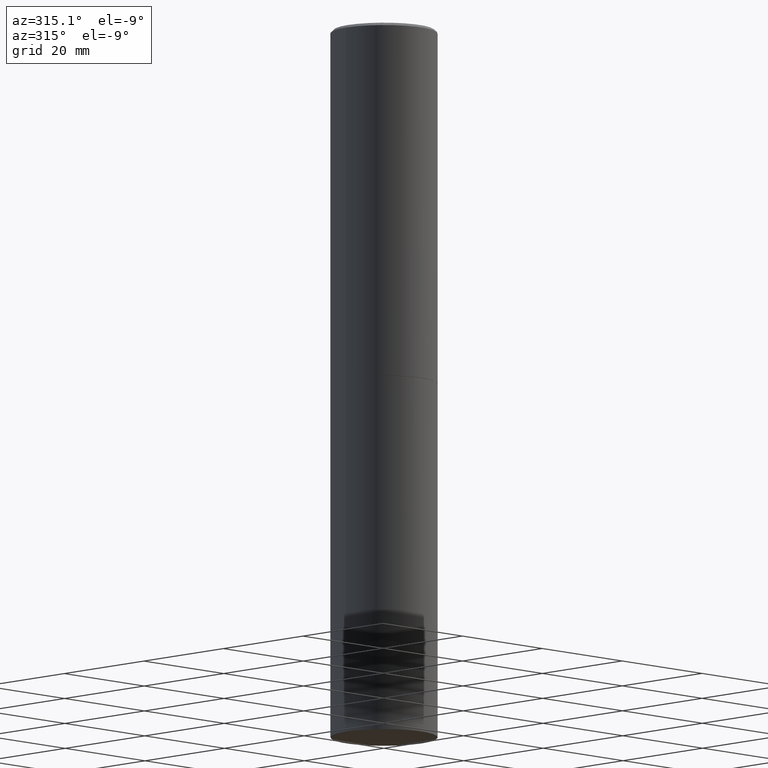
[diagram: clean part render]
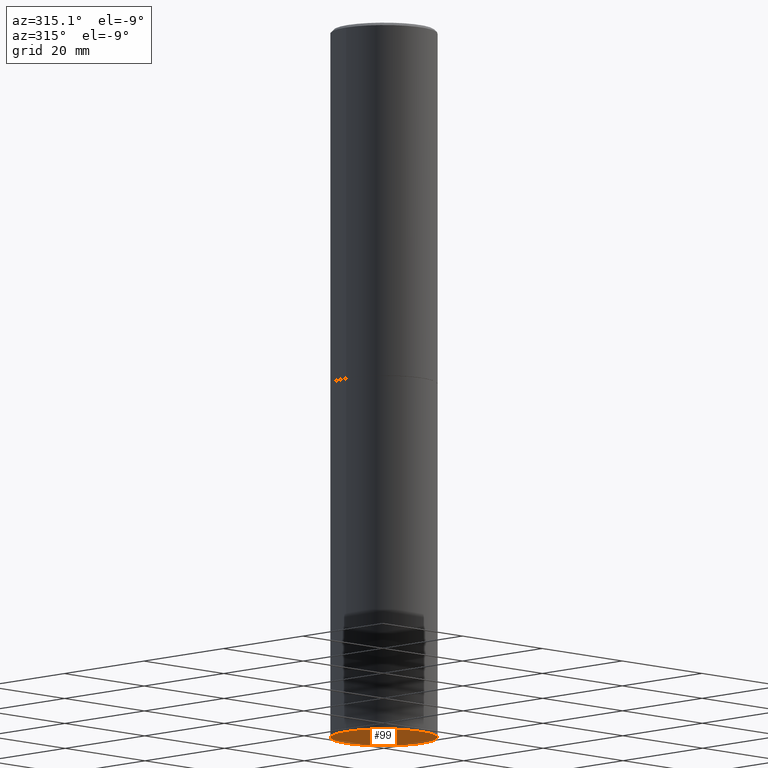
[diagram: same view with one face highlighted and labeled with its STEP entity id]
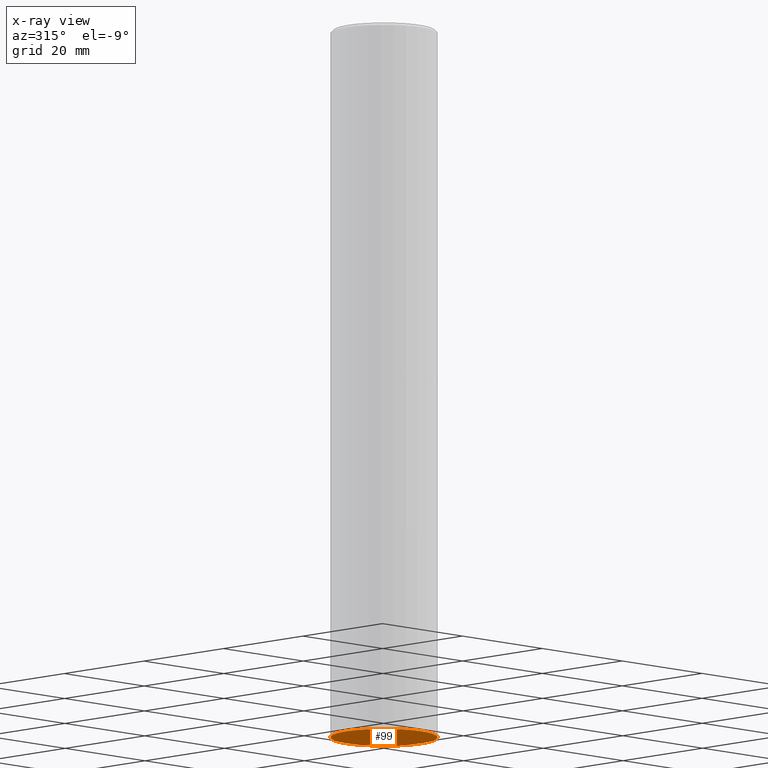
[diagram: x-ray of the same camera — body ghosted, the highlighted face saturated]
A machine part, auxiliary view. The second image highlights one B-rep face of the part: STEP entity #99.
The next image is the same camera in x-ray: the body ghosted, the highlighted face saturated — about 0% of this face is hidden behind the body in this view.
In plain terms, the highlighted planar face has unit normal (0, -0, -1).
Its self-contained STEP definition (entity closure, byte-faithful):
#6 = PLANE ( 'NONE',  #245 ) ;
#29 = FACE_OUTER_BOUND ( 'NONE', #145, .T. ) ;
#34 = DIRECTION ( 'NONE',  ( 1.000000000000000000, -6.982962677686266711E-15, 0.000000000000000000 ) ) ;
#49 = CARTESIAN_POINT ( 'NONE',  ( 1.222734403092568523E-28, -1.745740669421572989E-14, -5.000000000000000000 ) ) ;
#51 = DIRECTION ( 'NONE',  ( 1.000000000000000000, -6.982962677686266711E-15, 0.000000000000000000 ) ) ;
#90 = EDGE_CURVE ( 'NONE', #272, #323, #127, .T. ) ;
#99 = ADVANCED_FACE ( 'NONE', ( #29 ), #6, .T. ) ;
#103 = CIRCLE ( 'NONE', #139, 0.3750000000000000555 ) ;
#110 = CARTESIAN_POINT ( 'NONE',  ( 1.222734403092568523E-28, -1.745740669421572989E-14, -5.000000000000000000 ) ) ;
#127 = CIRCLE ( 'NONE', #332, 0.3750000000000000555 ) ;
#134 = CARTESIAN_POINT ( 'NONE',  ( 2.618611004132472290E-15, 0.3749999999999825695, -5.000000000000000888 ) ) ;
#139 = AXIS2_PLACEMENT_3D ( 'NONE', #49, #296, #51 ) ;
#142 = CARTESIAN_POINT ( 'NONE',  ( 0.3750000000000000555, -2.007601769834807990E-14, -5.000000000000000000 ) ) ;
#145 = EDGE_LOOP ( 'NONE', ( #253, #279 ) ) ;
#155 = DIRECTION ( 'NONE',  ( -2.445468806185136597E-29, 3.491481338843145583E-15, 1.000000000000000000 ) ) ;
#208 = DIRECTION ( 'NONE',  ( 2.438088387897960049E-29, -3.491481338843145188E-15, -1.000000000000000000 ) ) ;
#224 = CARTESIAN_POINT ( 'NONE',  ( -0.3750000000000000555, -1.042851976156142014E-14, -5.000000000000000000 ) ) ;
#245 = AXIS2_PLACEMENT_3D ( 'NONE', #134, #208, #314 ) ;
#253 = ORIENTED_EDGE ( 'NONE', *, *, #90, .F. ) ;
#272 = VERTEX_POINT ( 'NONE', #142 ) ;
#279 = ORIENTED_EDGE ( 'NONE', *, *, #313, .F. ) ;
#296 = DIRECTION ( 'NONE',  ( -2.445468806185136597E-29, 3.491481338843145583E-15, 1.000000000000000000 ) ) ;
#313 = EDGE_CURVE ( 'NONE', #323, #272, #103, .T. ) ;
#314 = DIRECTION ( 'NONE',  ( -1.000000000000000000, 6.982962677686265922E-15, -4.876176775795935793E-29 ) ) ;
#323 = VERTEX_POINT ( 'NONE', #224 ) ;
#332 = AXIS2_PLACEMENT_3D ( 'NONE', #110, #155, #34 ) ;